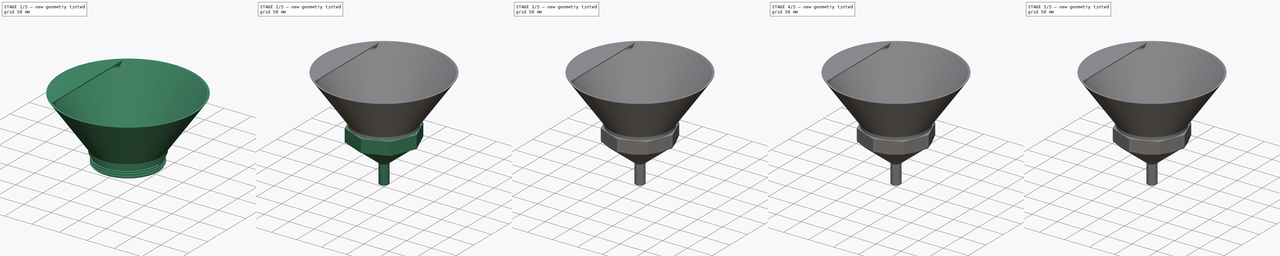
[diagram: build sequence overview — one tinted view per stage of 5, left to right]
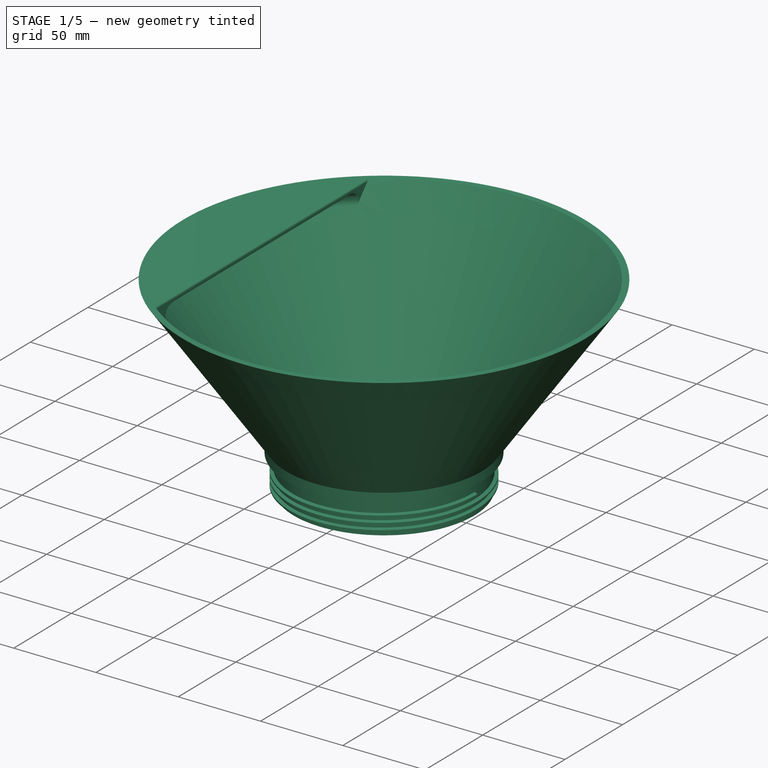
[diagram: stage 1 of 5 — iso view after this stage's code; geometry added in this stage tinted green]
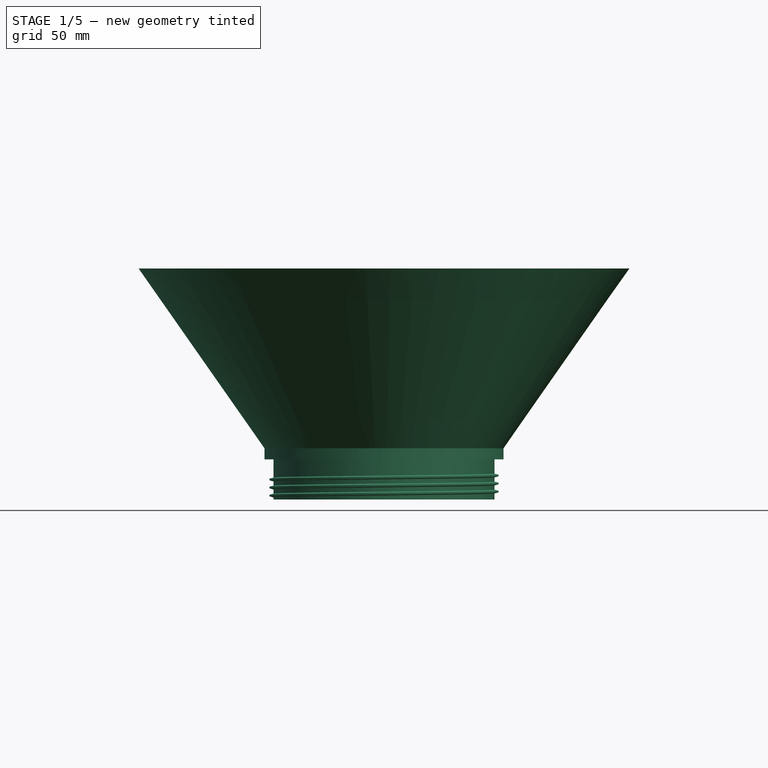
[diagram: stage 1 of 5 — front view after this stage's code; geometry added in this stage tinted green]
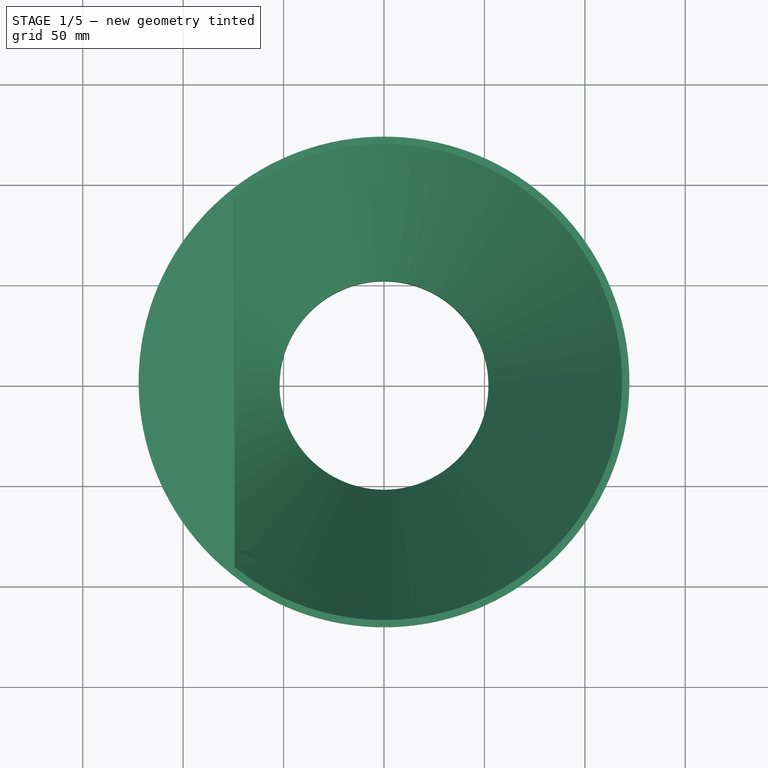
[diagram: stage 1 of 5 — top view after this stage's code; geometry added in this stage tinted green]
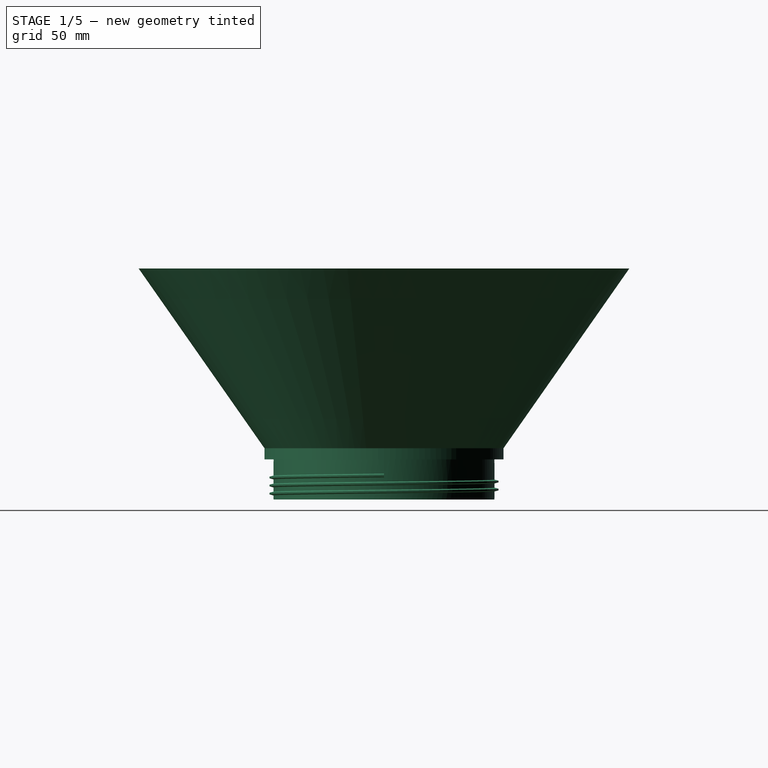
[diagram: stage 1 of 5 — right view after this stage's code; geometry added in this stage tinted green]
FCSTD DOCUMENT  (FreeCAD 2023.131R26244 +5365 (Git))
Label: Chemistry Gravity Filter v2
License: All rights reserved
LicenseURL: http://en.wikipedia.org/wiki/All_rights_reserved
objects: Sketcher::SketchObject×14, PartDesign::Pocket×6, PartDesign::PolarPattern×5, PartDesign::Fillet×5, PartDesign::Revolution×4, PartDesign::Body×3, PartDesign::AdditiveHelix×2, PartDesign::Pad×2, Spreadsheet::Sheet×1
note: 103 computed .brp shape members not serialized (recipe doc carries the construction recipe); baked Part::Feature solids carry a one-line shape summary decoded from their .brp

FEATURE [Spreadsheet::Sheet] Spreadsheet  label="Parameters"
  PythonMode = false
  ShowCells = 0
  TreeRank = 1
  cells = A1=Thickness; B1(thickness)=3; A2=Filter Diameter; B2(filter_diameter)=110; A3=Filter Base Height; B3(filter_base_height)=20; A4=Funnel Height; B4(funnel_height)=95; A5=Funnel Angle; B5(funnel_angle)=35; A6=Collector Body Height; B6(collector_body_height)=40; A7=Stem Min Diameter; B7(stem_min_diameter)=18; A8=Stem Length; B8(stem_length)=40; A10=Handle Width; B10(hangle_width)=45; A12=Thread Pitch; B12(thread_pitch)=4; A13=Thread Depth; B13(thread_depth)=2; A14=Thread Angle; B14(thread_angle)=15; A16=O-right Diameter; B16(oring_diameter)=4; B18=Hole Size; C18=Diameter; D18=Quantity; A19=Outer Ring; B19(ring_1_size)=7; C19(ring_1_diameter)=46; D19(ring_1_count)=30; B20(ring_2_size)=6; C20(ring_2_diameter)=36; D20(ring_2_count)=25; A21=Middle Ring; B21(ring_3_size)=5; C21(ring_3_diameter)=26; D21(ring_3_count)=20; B22(ring_4_size)=4; C22(ring_4_diameter)=16; D22(ring_4_count)=15; A23=Inner Ring; B23(ring_5_size)=3; C23(ring_5_diameter)=8; D23(ring_5_count)=10
FEATURE [Sketcher::SketchObject] Sketch
  ArcFitTolerance = 1e-06
  AttachmentSupport = -> [XZ_Plane]
  ExternalBSplineMaxDegree = 5
  ExternalBSplineTolerance = 0.0001
  FullyConstrained = false
  InternalTolerance = 1e-06
  InvalidShape = false
  MakeInternals = false
  MapMode = 5
  Placement = pos=(0,0,0) rot=(1,0,0;1.5708rad)
  Support = -> [XZ_Plane]
  TreeRank = 12
  ValidateShape = true
  expr: Constraints[0] = <<Parameters>>.funnel_angle
  expr: Constraints[13] = <<Parameters>>.thickness
  expr: Constraints[14] = <<Parameters>>.filter_base_height
  expr: Constraints[1] = <<Parameters>>.funnel_height
  expr: Constraints[20] = <<Parameters>>.thickness * 1.5
  expr: Constraints[2] = <<Parameters>>.filter_diameter / 2 - <<Parameters>>.thickness
  expr: Constraints[6] = <<Parameters>>.thickness
  sketch-geometry (9):
    g0: LineSegment StartX=-52 StartY=0 StartZ=0 EndX=-118.52 EndY=95 EndZ=0
    g1: LineSegment StartX=-59.5 StartY=5.48077 StartZ=0 EndX=-122.182 EndY=95 EndZ=0
    g2: LineSegment [constr] StartX=-88.6276 StartY=47.0793 StartZ=0 EndX=-86.1701 EndY=48.8 EndZ=0
    g3: LineSegment StartX=-122.182 StartY=95 StartZ=0 EndX=-118.52 EndY=95 EndZ=0
    g4: LineSegment StartX=-55 StartY=0 StartZ=0 EndX=-55 EndY=-20 EndZ=0
    g5: LineSegment StartX=-52 StartY=0 StartZ=0 EndX=-52 EndY=-20 EndZ=0
    g6: LineSegment StartX=-55 StartY=-20 StartZ=0 EndX=-52 EndY=-20 EndZ=0
    g7: LineSegment StartX=-59.5 StartY=0 StartZ=0 EndX=-59.5 EndY=5.48077 EndZ=0
    g8: LineSegment StartX=-59.5 StartY=0 StartZ=0 EndX=-55 EndY=0 EndZ=0
  constraints (27):
    c: Angle(g-2,g0) = 0.610865
    c: DistanceY(g-1,g0) = 95
    c: DistanceX(g0,g-1) = 52
    c: Parallel(g0,g1)
    c: PointOnObject(g2,g0)
    c: Perpendicular(g2,g1)
    c: Distance(g2,g2) = 3
    c: Coincident(g3,g1)
    c: Coincident(g3,g0)
    c: Horizontal(g3)
    c: Vertical(g4)
    c: Coincident(g5,g0)
    c: Vertical(g5)
    c: DistanceX(g4,g0) = 3
    c: DistanceY(g4,g4) = 20
    c: Coincident(g6,g4)
    c: Coincident(g6,g5)
    c: Horizontal(g6)
    c: PointOnObject(g4,g-1)
    c: Vertical(g7)
    c: DistanceX(g7,g4) = 4.5
    c: Coincident(g1,g7)
    c: PointOnObject(g2,g1)
    c: PointOnObject(g0,g-1)
    c: Coincident(g8,g7)
    c: Horizontal(g8)
    c: Coincident(g8,g4)
FEATURE [PartDesign::Revolution] Revolution  label="Collection Funnel"
  AddSubType = 0
  Angle = 360
  Axis = (0,-2e-16,1)
  Base = (0,0,0)
  ClaimChildren = false
  Fit = 0
  FitJoin = 0
  InnerFit = 0
  InnerFitJoin = 0
  InvalidShape = false
  Linearize = true
  NewSolid = false
  Profile = -> Sketch
  ReferenceAxis = -> Sketch [V_Axis]
  Suppress = false
  TreeRank = 13
  ValidateShape = true
  _ProfileBasedVersion = 1
FEATURE [Sketcher::SketchObject] Sketch001
  ArcFitTolerance = 1e-06
  AttachmentSupport = -> [XZ_Plane]
  ExternalBSplineMaxDegree = 5
  ExternalBSplineTolerance = 0.0001
  FullyConstrained = true
  InternalTolerance = 1e-06
  InvalidShape = false
  MakeInternals = false
  MapMode = 5
  Placement = pos=(0,0,0) rot=(1,0,0;1.5708rad)
  Support = -> [XZ_Plane]
  TreeRank = 14
  ValidateShape = true
  expr: Constraints[10] = <<Parameters>>.filter_diameter / 2
  expr: Constraints[11] = <<Parameters>>.filter_base_height - 1
  expr: Constraints[7] = <<Parameters>>.thread_pitch / 2.1
  expr: Constraints[8] = <<Parameters>>.thread_depth
  expr: Constraints[9] = 90 - <<Parameters>>.thread_angle
  sketch-geometry (4):
    g0: LineSegment StartX=-55 StartY=-17.0952 StartZ=0 EndX=-55 EndY=-19 EndZ=0
    g1: LineSegment StartX=-55 StartY=-19 StartZ=0 EndX=-57 EndY=-18.4641 EndZ=0
    g2: LineSegment StartX=-55 StartY=-17.0952 StartZ=0 EndX=-57 EndY=-17.6311 EndZ=0
    g3: LineSegment StartX=-57 StartY=-17.6311 StartZ=0 EndX=-57 EndY=-18.4641 EndZ=0
  constraints (12):
    c: Vertical(g0)
    c: Coincident(g1,g0)
    c: Coincident(g3,g2)
    c: Coincident(g3,g1)
    c: Coincident(g2,g0)
    c: Equal(g2,g1)
    c: Parallel(g0,g3)
    c: DistanceY(g0,g0) = 1.90476
    c: DistanceX(g2,g0) = 2
    c: Angle(g2,g0) = 1.309
    c: DistanceX(g0,g-1) = 55
    c: DistanceY(g0,g-1) = 19
FEATURE [PartDesign::AdditiveHelix] Helix  label="Top Threads"
  AddSubType = 0
  Angle = 0
  Axis = (0,-2e-16,1)
  Base = (0,0,0)
  BaseFeature = -> Revolution
  ClaimChildren = false
  Fit = 0
  FitJoin = 0
  Growth = 0
  HasBeenEdited = true
  Height = 10
  InnerFit = 0
  InnerFitJoin = 0
  InvalidShape = false
  LeftHanded = false
  Linearize = true
  Mode = 0
  NewSolid = false
  Outside = false
  Pitch = 4
  Profile = -> Sketch001
  ReferenceAxis = -> Sketch001 [V_Axis]
  Suppress = false
  TreeRank = 15
  Turns = 2.5
  ValidateShape = true
  _ProfileBasedVersion = 1
  expr: Height = <<Parameters>>.filter_base_height / 2
  expr: Pitch = <<Parameters>>.thread_pitch
FEATURE [PartDesign::Body] Body004  label="Bottom"
  AutoGroupSolids = false
  ClaimAllChildren = false
  ExportMode = 0
  Group = -> [Sketch026,Pad001,Sketch027,Helix001,Sketch028,Revolution004,Sketch029,Revolution005,Fillet001,Fillet002,Fillet003]
  InvalidShape = false
  Origin = -> Origin001
  Tip = -> Fillet003
  TreeRank = 135
  ValidateShape = true
  _ExportChildren = -> [Pad001,Helix001,Revolution004,Revolution005,Fillet001,Fillet002,Fillet003]
  _GroupVersion = 1
FEATURE [Sketcher::SketchObject] Sketch030
  ArcFitTolerance = 1e-06
  AttachmentSupport = -> [Helix]
  ExternalBSplineMaxDegree = 5
  ExternalBSplineTolerance = 0.0001
  FullyConstrained = false
  InternalTolerance = 1e-06
  InvalidShape = false
  MakeInternals = false
  MapMode = 5
  Placement = pos=(0,-2.11e-14,95) rot=(0,0,1;0rad)
  Support = -> [Helix]
  TreeRank = 148
  ValidateShape = true
  expr: Constraints[1] = 122.18 * 2 - 2 * <<Parameters>>.thickness
  expr: Constraints[8] = <<Parameters>>.hangle_width
  sketch-geometry (3):
    g0: ArcOfCircle CenterX=0 CenterY=0 CenterZ=0 NormalX=0 NormalY=0 NormalZ=1 AngleXU=0 Radius=119.18 StartAngle=2.24263 EndAngle=4.04056
    g1: LineSegment StartX=-74.18 StartY=93.2802 StartZ=0 EndX=-74.18 EndY=-93.2802 EndZ=0
    g2: LineSegment [constr] StartX=-119.18 StartY=1e-16 StartZ=0 EndX=-74.18 EndY=1e-16 EndZ=0
  constraints (9):
    c: Coincident(g0,g-1)
    c: Diameter(g0) = 238.36
    c: Vertical(g1)
    c: Coincident(g0,g1)
    c: Coincident(g0,g1)
    c: PointOnObject(g2,g0)
    c: PointOnObject(g2,g1)
    c: Horizontal(g2)
    c: DistanceX(g2,g2) = 45
FEATURE [PartDesign::Pad] Pad  label="Handle"
  AddSubType = 0
  AlongSketchNormal = false
  AutoTaperInnerAngle = true
  BaseFeature = -> Helix
  CheckUpToFaceLimits = true
  ClaimChildren = false
  Direction = (0,-2e-16,1)
  Fit = 0
  FitJoin = 0
  InnerFit = 0
  InnerFitJoin = 0
  InvalidShape = false
  Length = 3
  Length2 = 100
  Linearize = true
  NewSolid = false
  Profile = -> Sketch030
  Reversed = true
  Suppress = false
  TaperInnerAngle = 0
  TaperInnerAngleRev = 0
  TreeRank = 149
  Type = 0
  ValidateShape = true
  _ProfileBasedVersion = 1
  expr: Length = <<Parameters>>.thickness
FEATURE [PartDesign::Fillet] Fillet
  AddSubType = 0
  Base = -> Pad [Edge6]
  BaseFeature = -> Pad
  InvalidShape = false
  NewSolid = false
  Radius = 5
  SupportTransform = false
  Suppress = false
  TreeRank = 150
  ValidateShape = true
FEATURE [PartDesign::Fillet] Fillet004
  AddSubType = 0
  Base = -> Fillet [Edge17,Edge15]
  BaseFeature = -> Fillet
  InvalidShape = false
  NewSolid = false
  Radius = 1
  SupportTransform = false
  Suppress = false
  TreeRank = 151
  ValidateShape = true
FEATURE [PartDesign::Body] Body  label="Top"
  AutoGroupSolids = false
  ClaimAllChildren = false
  ExportMode = 0
  Group = -> [Sketch,Revolution,Sketch001,Helix,Sketch030,Pad,Fillet,Fillet004]
  InvalidShape = false
  Origin = -> Origin
  Tip = -> Fillet004
  TreeRank = 11
  ValidateShape = true
  _ExportChildren = -> [Revolution,Helix,Pad,Fillet,Fillet004]
  _GroupVersion = 1
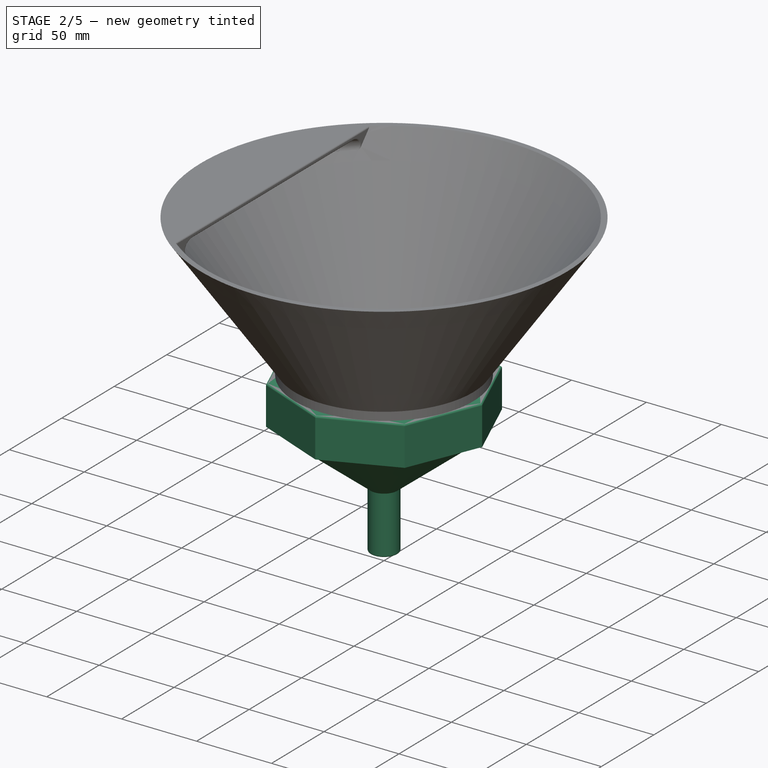
[diagram: stage 2 of 5 — iso view after this stage's code; geometry added in this stage tinted green]
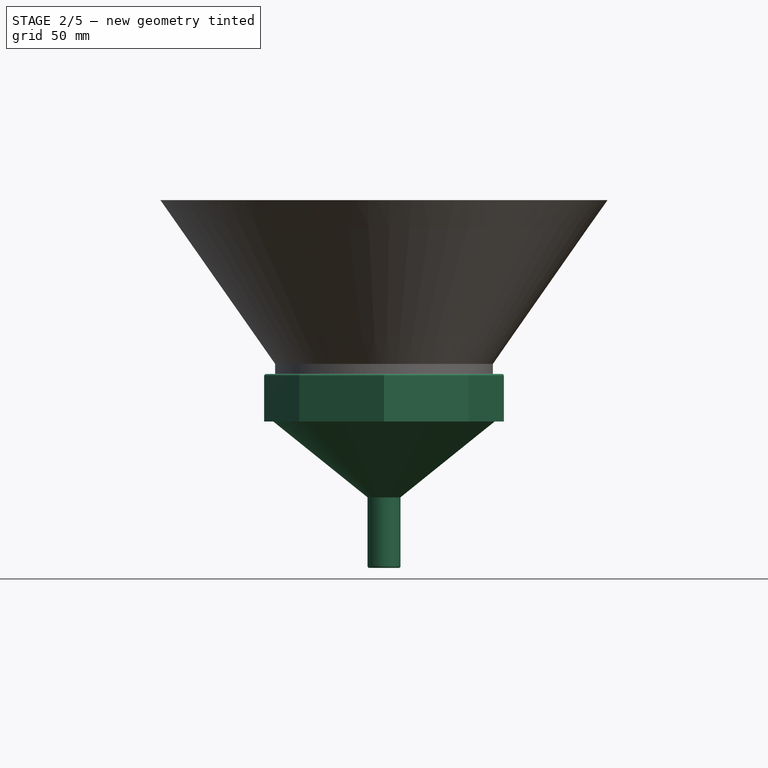
[diagram: stage 2 of 5 — front view after this stage's code; geometry added in this stage tinted green]
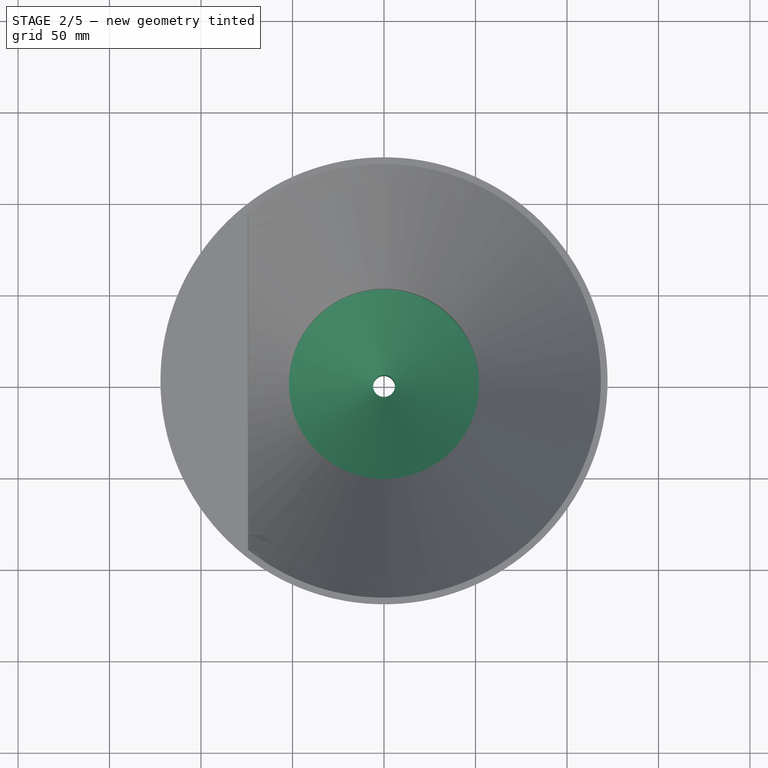
[diagram: stage 2 of 5 — top view after this stage's code; geometry added in this stage tinted green]
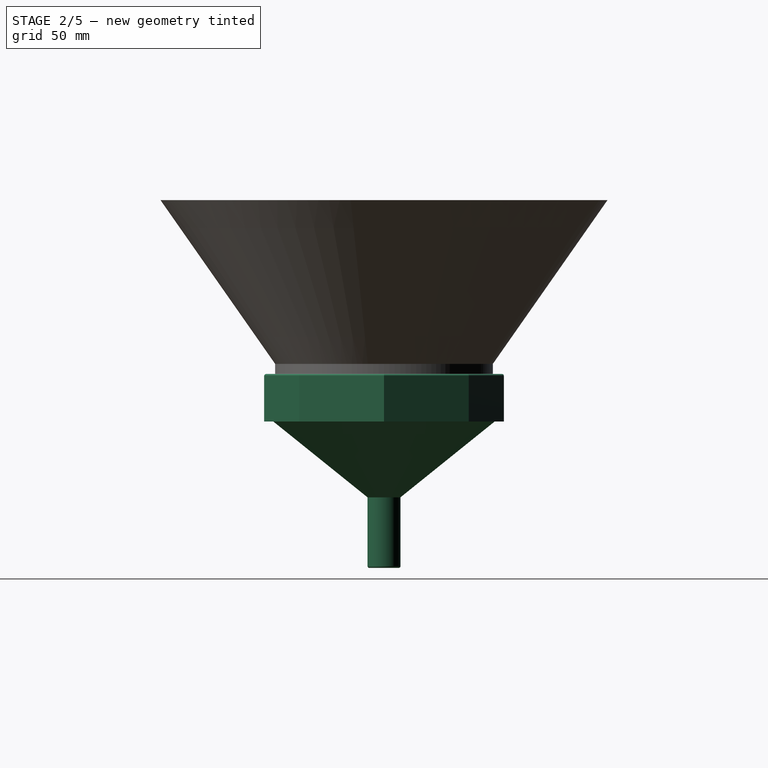
[diagram: stage 2 of 5 — right view after this stage's code; geometry added in this stage tinted green]
FEATURE [PartDesign::Body] Body003  label="Filter Plate"
  AutoGroupSolids = false
  ClaimAllChildren = false
  ExportMode = 0
  Group = -> [Sketch019,Revolution003,Sketch020,Sketch021,Sketch022,Sketch023,Sketch024,Sketch025,Pocket008,PolarPattern005,Pocket009,PolarPattern006,Pocket010,PolarPattern007,Pocket011,PolarPattern008,Pocket012,PolarPattern009,Pocket013]
  InvalidShape = false
  Tip = -> Pocket013
  TreeRank = 125
  ValidateShape = true
  _ExportChildren = -> [Revolution003,Pocket008,PolarPattern005,Pocket009,PolarPattern006,Pocket010,PolarPattern007,Pocket011,PolarPattern008,Pocket012,PolarPattern009,Pocket013]
  _GroupVersion = 1
FEATURE [Sketcher::SketchObject] Sketch026
  ArcFitTolerance = 1e-06
  AttachmentSupport = -> [XY_Plane001]
  ExternalBSplineMaxDegree = 5
  ExternalBSplineTolerance = 0.0001
  FullyConstrained = true
  InternalTolerance = 1e-06
  InvalidShape = false
  MakeInternals = false
  MapMode = 5
  Support = -> [XY_Plane001]
  TreeRank = 136
  ValidateShape = true
  expr: Constraints[0] = <<Parameters>>.filter_diameter + 2 * <<Parameters>>.thread_depth + 1
  expr: Constraints[29] = <<Parameters>>.thickness
  sketch-geometry (11):
    g0: Circle CenterX=0 CenterY=0 CenterZ=0 NormalX=0 NormalY=0 NormalZ=1 AngleXU=0 Radius=57.5
    g1: LineSegment StartX=0 StartY=65.4847 StartZ=0 EndX=-46.3047 EndY=46.3047 EndZ=0
    g2: LineSegment StartX=-46.3047 StartY=46.3047 StartZ=0 EndX=-65.4847 EndY=0 EndZ=0
    g3: LineSegment StartX=-65.4847 StartY=-9e-16 StartZ=0 EndX=-46.3047 EndY=-46.3047 EndZ=0
    g4: LineSegment StartX=-46.3047 StartY=-46.3047 StartZ=0 EndX=0 EndY=-65.4847 EndZ=0
    g5: LineSegment StartX=-1.8e-15 StartY=-65.4847 StartZ=0 EndX=46.3047 EndY=-46.3047 EndZ=0
    g6: LineSegment StartX=46.3047 StartY=-46.3047 StartZ=0 EndX=65.4847 EndY=0 EndZ=0
    g7: LineSegment StartX=65.4847 StartY=1.1e-15 StartZ=0 EndX=46.3047 EndY=46.3047 EndZ=0
    g8: LineSegment StartX=46.3047 StartY=46.3047 StartZ=0 EndX=0 EndY=65.4847 EndZ=0
    g9: Circle [constr] CenterX=0 CenterY=0 CenterZ=0 NormalX=0 NormalY=0 NormalZ=1 AngleXU=0 Radius=65.4847
    g10: LineSegment [constr] StartX=23.1523 StartY=55.8947 StartZ=0 EndX=22.0043 EndY=53.1231 EndZ=0
  constraints (25):
    c: Diameter(g0) = 115
    c: Coincident(g1,g2)
    c: Coincident(g2,g3)
    c: Coincident(g3,g4)
    c: Coincident(g4,g5)
    c: Coincident(g5,g6)
    c: Coincident(g6,g7)
    c: Coincident(g7,g8)
    c: Coincident(g8,g1)
    c: Equal(g1, g2-g8) x7
    c: PointOnObject(g1,g9)
    c: PointOnObject(g2,g9)
    c: PointOnObject(g3,g9)
    c: PointOnObject(g4,g9)
    c: PointOnObject(g5,g9)
    c: PointOnObject(g6,g9)
    c: PointOnObject(g7,g9)
    c: PointOnObject(g8,g9)
    c: Coincident(g9,g0)
    c: PointOnObject(g8,g-2)
    c: PointOnObject(g10,g0)
    c: Perpendicular(g10,g8)
    c: Symmetric(g1,g7,g10)
    c: Distance(g10,g10) = 3
    c: Coincident(g0,g-1)
FEATURE [PartDesign::Pad] Pad001  label="Bottom Threaded Ring"
  AddSubType = 0
  AlongSketchNormal = false
  AutoTaperInnerAngle = true
  CheckUpToFaceLimits = true
  ClaimChildren = false
  Direction = (0,0,1)
  Fit = 0
  FitJoin = 0
  InnerFit = 0
  InnerFitJoin = 0
  InvalidShape = false
  Length = 26
  Length2 = 100
  Linearize = true
  NewSolid = false
  Profile = -> Sketch026
  Reversed = true
  Suppress = false
  TaperInnerAngle = 0
  TaperInnerAngleRev = 0
  TreeRank = 137
  Type = 0
  ValidateShape = true
  _ProfileBasedVersion = 1
  expr: Length = <<Parameters>>.filter_base_height + 2 * <<Parameters>>.thickness
FEATURE [Sketcher::SketchObject] Sketch027
  ArcFitTolerance = 1e-06
  AttachmentSupport = -> [XZ_Plane001]
  ExternalBSplineMaxDegree = 5
  ExternalBSplineTolerance = 0.0001
  FullyConstrained = true
  InternalTolerance = 1e-06
  InvalidShape = false
  MakeInternals = false
  MapMode = 5
  Placement = pos=(0,0,0) rot=(1,0,0;1.5708rad)
  Support = -> [XZ_Plane001]
  TreeRank = 138
  ValidateShape = true
  expr: Constraints[10] = <<Parameters>>.filter_diameter / 2 + <<Parameters>>.thread_depth + 1
  expr: Constraints[7] = <<Parameters>>.thread_pitch / 2.1
  expr: Constraints[8] = <<Parameters>>.thread_depth
  expr: Constraints[9] = 90 - <<Parameters>>.thread_angle
  sketch-geometry (4):
    g0: LineSegment StartX=-58 StartY=0 StartZ=0 EndX=-58 EndY=-1.90476 EndZ=0
    g1: LineSegment StartX=-58 StartY=0 StartZ=0 EndX=-56 EndY=-0.535898 EndZ=0
    g2: LineSegment StartX=-58 StartY=-1.90476 StartZ=0 EndX=-56 EndY=-1.36886 EndZ=0
    g3: LineSegment StartX=-56 StartY=-0.535898 StartZ=0 EndX=-56 EndY=-1.36886 EndZ=0
  constraints (12):
    c: Vertical(g0)
    c: Coincident(g1,g0)
    c: Coincident(g2,g0)
    c: Coincident(g3,g1)
    c: Coincident(g3,g2)
    c: Vertical(g3)
    c: Equal(g1,g2)
    c: DistanceY(g0,g0) = 1.90476
    c: DistanceX(g0,g1) = 2
    c: Angle(g0,g1) = 1.309
    c: DistanceX(g0,g-1) = 58
    c: DistanceY(g0,g-1) = 0
FEATURE [PartDesign::AdditiveHelix] Helix001  label="Bottom Threads"
  AddSubType = 0
  Angle = 0
  Axis = (0,-2e-16,1)
  Base = (0,0,0)
  BaseFeature = -> Pad001
  ClaimChildren = false
  Fit = 0
  FitJoin = 0
  Growth = 0
  HasBeenEdited = true
  Height = 16
  InnerFit = 0
  InnerFitJoin = 0
  InvalidShape = false
  LeftHanded = false
  Linearize = true
  Mode = 0
  NewSolid = false
  Outside = false
  Pitch = 4
  Profile = -> Sketch027
  ReferenceAxis = -> Sketch027 [V_Axis]
  Reversed = true
  Suppress = false
  TreeRank = 139
  Turns = 4
  ValidateShape = true
  _ProfileBasedVersion = 1
  expr: Height = <<Parameters>>.filter_base_height - <<Parameters>>.thread_pitch
  expr: Pitch = <<Parameters>>.thread_pitch
FEATURE [Sketcher::SketchObject] Sketch028
  ArcFitTolerance = 1e-06
  AttachmentSupport = -> [XZ_Plane001]
  ExternalBSplineMaxDegree = 5
  ExternalBSplineTolerance = 0.0001
  FullyConstrained = true
  InternalTolerance = 1e-06
  InvalidShape = false
  MakeInternals = false
  MapMode = 5
  Placement = pos=(0,0,0) rot=(1,0,0;1.5708rad)
  Support = -> [XZ_Plane001]
  TreeRank = 141
  ValidateShape = true
  expr: Constraints[10] = <<Parameters>>.filter_base_height + 2 * <<Parameters>>.thickness
  expr: Constraints[11] = <<Parameters>>.thickness
  expr: Constraints[8] = <<Parameters>>.thickness + <<Parameters>>.thread_depth / 2
  expr: Constraints[9] = (<<Parameters>>.filter_diameter + 2 * <<Parameters>>.thread_depth + 1) / 2
  sketch-geometry (4):
    g0: LineSegment StartX=-57.5 StartY=-23 StartZ=0 EndX=-53.5 EndY=-23 EndZ=0
    g1: LineSegment StartX=-53.5 StartY=-23 StartZ=0 EndX=-53.5 EndY=-26 EndZ=0
    g2: LineSegment StartX=-53.5 StartY=-26 StartZ=0 EndX=-57.5 EndY=-26 EndZ=0
    g3: LineSegment StartX=-57.5 StartY=-26 StartZ=0 EndX=-57.5 EndY=-23 EndZ=0
  constraints (12):
    c: Coincident(g0,g1)
    c: Coincident(g1,g2)
    c: Coincident(g2,g3)
    c: Coincident(g3,g0)
    c: Horizontal(g0)
    c: Horizontal(g2)
    c: Vertical(g1)
    c: Vertical(g3)
    c: DistanceX(g0,g0) = 4
    c: DistanceX(g0,g-1) = 57.5
    c: DistanceY(g2,g-1) = 26
    c: DistanceY(g2,g0) = 3
FEATURE [PartDesign::Revolution] Revolution004  label="Retaining Ring"
  AddSubType = 0
  Angle = 360
  Axis = (0,-2e-16,1)
  Base = (0,0,0)
  BaseFeature = -> Helix001
  ClaimChildren = false
  Fit = 0
  FitJoin = 0
  InnerFit = 0
  InnerFitJoin = 0
  InvalidShape = false
  Linearize = true
  NewSolid = false
  Profile = -> Sketch028
  ReferenceAxis = -> Sketch028 [V_Axis]
  Suppress = false
  TreeRank = 142
  ValidateShape = true
  _ProfileBasedVersion = 1
FEATURE [Sketcher::SketchObject] Sketch029
  ArcFitTolerance = 1e-06
  AttachmentSupport = -> [XZ_Plane001]
  ExternalBSplineMaxDegree = 5
  ExternalBSplineTolerance = 0.0001
  FullyConstrained = true
  InternalTolerance = 1e-06
  InvalidShape = false
  MakeInternals = false
  MapMode = 5
  Placement = pos=(0,0,0) rot=(1,0,0;1.5708rad)
  Support = -> [XZ_Plane001]
  TreeRank = 143
  ValidateShape = true
  expr: Constraints[11] = <<Parameters>>.thickness
  expr: Constraints[15] = <<Parameters>>.thickness
  expr: Constraints[16] = <<Parameters>>.stem_length
  expr: Constraints[17] = <<Parameters>>.collector_body_height
  expr: Constraints[18] = (<<Parameters>>.filter_diameter + 2 * <<Parameters>>.thread_depth + 1) / 2 + <<Parameters>>.thickness
  expr: Constraints[19] = <<Parameters>>.stem_min_diameter / 2
  expr: Constraints[9] = <<Parameters>>.filter_base_height + 2 * <<Parameters>>.thickness
  sketch-geometry (7):
    g0: LineSegment StartX=-55.7144 StartY=-26 StartZ=0 EndX=-6 EndY=-66 EndZ=0
    g1: LineSegment StartX=-6 StartY=-66 StartZ=0 EndX=-6 EndY=-106 EndZ=0
    g2: LineSegment StartX=-6 StartY=-106 StartZ=0 EndX=-9 EndY=-106 EndZ=0
    g3: LineSegment StartX=-9 StartY=-106 StartZ=0 EndX=-9 EndY=-67.4367 EndZ=0
    g4: LineSegment StartX=-9 StartY=-67.4367 StartZ=0 EndX=-60.5 EndY=-26 EndZ=0
    g5: LineSegment StartX=-60.5 StartY=-26 StartZ=0 EndX=-55.7144 EndY=-26 EndZ=0
    g6: LineSegment [constr] StartX=-34.75 StartY=-46.7184 StartZ=0 EndX=-32.8694 EndY=-44.381 EndZ=0
  constraints (21):
    c: Coincident(g1,g0)
    c: Vertical(g1)
    c: Coincident(g2,g1)
    c: Coincident(g3,g2)
    c: Vertical(g3)
    c: Coincident(g4,g3)
    c: Coincident(g5,g4)
    c: Coincident(g5,g0)
    c: Horizontal(g5)
    c: DistanceY(g4,g-1) = 26
    c: Horizontal(g2)
    c: DistanceX(g2,g1) = 3
    c: PointOnObject(g6,g0)
    c: Perpendicular(g6,g4)
    c: Parallel(g4,g0)
    c: Distance(g6,g6) = 3
    c: DistanceY(g1,g0) = 40
    c: DistanceY(g0,g0) = 40
    c: DistanceX(g4,g-1) = 60.5
    c: DistanceX(g2,g-1) = 9
    c: Symmetric(g4,g3,g6)
FEATURE [PartDesign::Revolution] Revolution005  label="Funnel"
  AddSubType = 0
  Angle = 360
  Axis = (0,-2e-16,1)
  Base = (0,0,0)
  BaseFeature = -> Revolution004
  ClaimChildren = false
  Fit = 0
  FitJoin = 0
  InnerFit = 0
  InnerFitJoin = 0
  InvalidShape = false
  Linearize = true
  NewSolid = false
  Profile = -> Sketch029
  ReferenceAxis = -> Sketch029 [V_Axis]
  Suppress = false
  TreeRank = 144
  ValidateShape = true
  _ProfileBasedVersion = 1
FEATURE [PartDesign::Fillet] Fillet001
  AddSubType = 0
  Base = -> Revolution005 [Face31,Face4]
  BaseFeature = -> Revolution005
  InvalidShape = false
  NewSolid = false
  Radius = 1
  SupportTransform = false
  Suppress = false
  TreeRank = 145
  ValidateShape = true
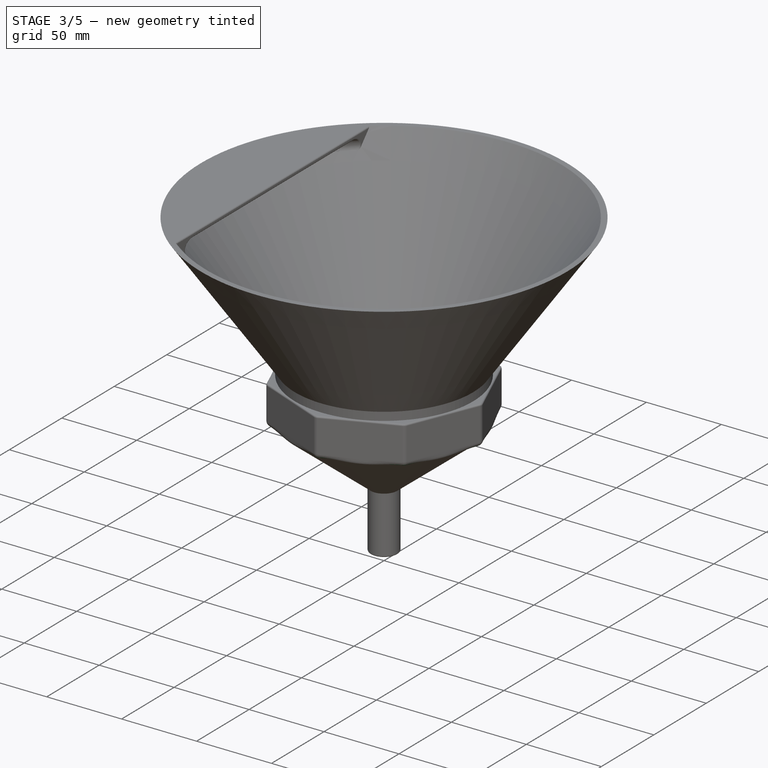
[diagram: stage 3 of 5 — iso view after this stage's code; geometry added in this stage tinted green]
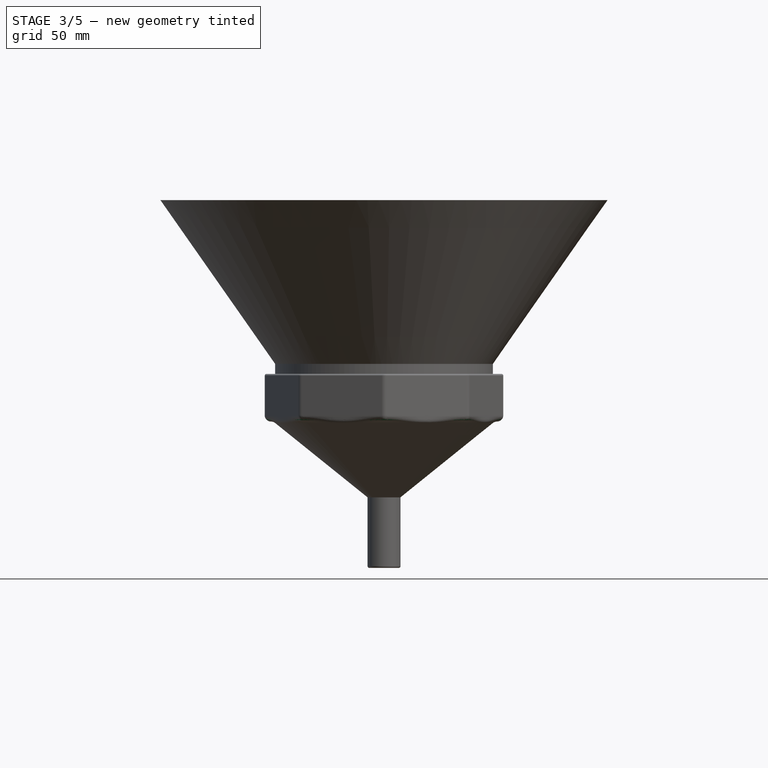
[diagram: stage 3 of 5 — front view after this stage's code; geometry added in this stage tinted green]
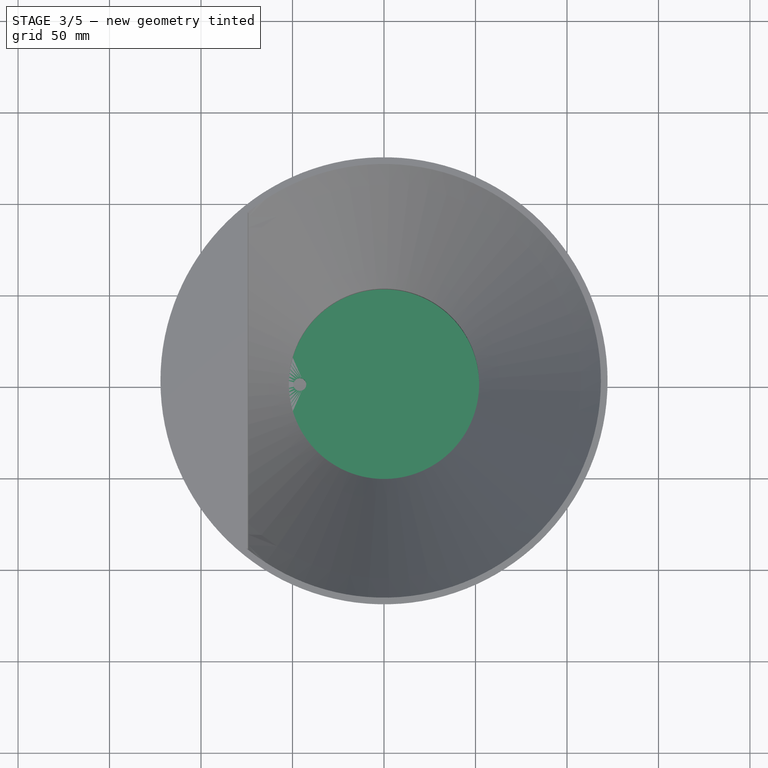
[diagram: stage 3 of 5 — top view after this stage's code; geometry added in this stage tinted green]
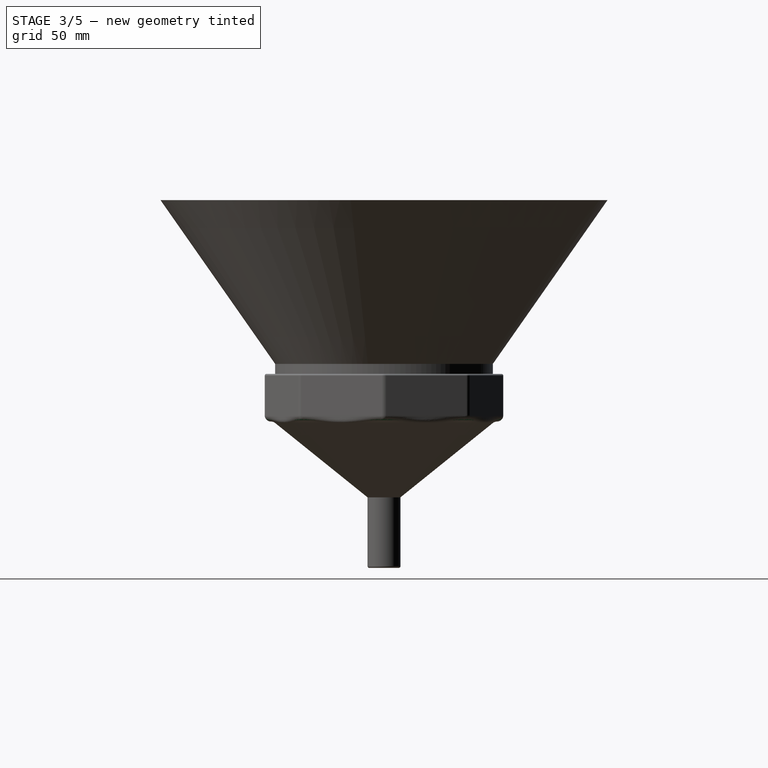
[diagram: stage 3 of 5 — right view after this stage's code; geometry added in this stage tinted green]
FEATURE [Sketcher::SketchObject] Sketch019
  ArcFitTolerance = 1e-06
  ExternalBSplineMaxDegree = 5
  ExternalBSplineTolerance = 0.0001
  FullyConstrained = true
  InternalTolerance = 1e-06
  InvalidShape = false
  MakeInternals = false
  MapMode = 5
  Placement = pos=(0,0,0) rot=(1,0,0;1.5708rad)
  TreeRank = 103
  ValidateShape = true
  expr: Constraints[14] = <<Parameters>>.filter_diameter / 2
  expr: Constraints[16] = <<Parameters>>.thickness + 1
  expr: Constraints[17] = <<Parameters>>.filter_base_height
  expr: Constraints[9] = <<Parameters>>.thickness
  sketch-geometry (6):
    g0: LineSegment StartX=-55 StartY=-20 StartZ=0 EndX=0 EndY=-20 EndZ=0
    g1: LineSegment StartX=-55 StartY=-20 StartZ=0 EndX=-55 EndY=-23 EndZ=0
    g2: LineSegment StartX=0 StartY=-26 StartZ=0 EndX=-51 EndY=-26 EndZ=0
    g3: LineSegment StartX=-51 StartY=-26 StartZ=0 EndX=-51 EndY=-23 EndZ=0
    g4: LineSegment StartX=-51 StartY=-23 StartZ=0 EndX=-55 EndY=-23 EndZ=0
    g5: LineSegment StartX=0 StartY=-20 StartZ=0 EndX=0 EndY=-26 EndZ=0
  constraints (18):
    c: Horizontal(g0)
    c: Coincident(g1,g0)
    c: Vertical(g1)
    c: Horizontal(g2)
    c: Coincident(g3,g2)
    c: Vertical(g3)
    c: Coincident(g4,g3)
    c: Coincident(g4,g1)
    c: Horizontal(g4)
    c: DistanceY(g1,g0) = 3
    c: Vertical(g5)
    c: Coincident(g0,g5)
    c: Coincident(g2,g5)
    c: DistanceX(g2,g-1) = 0
    c: DistanceX(g0,g-1) = 55
    c: Equal(g1,g3)
    c: DistanceX(g1,g3) = 4
    c: DistanceY(g0,g-1) = 20
FEATURE [PartDesign::Revolution] Revolution003
  AddSubType = 0
  Angle = 360
  Axis = (0,0,1)
  Base = (0,0,0)
  ClaimChildren = false
  Fit = 0
  FitJoin = 0
  InnerFit = 0
  InnerFitJoin = 0
  InvalidShape = false
  Linearize = true
  NewSolid = false
  Profile = -> Sketch019
  ReferenceAxis = -> Sketch019 [V_Axis]
  Suppress = false
  TreeRank = 104
  ValidateShape = true
  _ProfileBasedVersion = 1
FEATURE [Sketcher::SketchObject] Sketch020
  ArcFitTolerance = 1e-06
  ExternalBSplineMaxDegree = 5
  ExternalBSplineTolerance = 0.0001
  FullyConstrained = true
  InternalTolerance = 1e-06
  InvalidShape = false
  MakeInternals = false
  MapMode = 5
  TreeRank = 105
  ValidateShape = true
  expr: Constraints[1] = Spreadsheet.ring_1_size
  expr: Constraints[2] = <<Parameters>>.ring_1_diameter
  sketch-geometry (1):
    g0: Circle CenterX=-46 CenterY=0 CenterZ=0 NormalX=0 NormalY=0 NormalZ=1 AngleXU=0 Radius=3.5
  constraints (3):
    c: PointOnObject(g0,g-1)
    c: Diameter(g0) = 7
    c: DistanceX(g0,g-1) = 46
FEATURE [PartDesign::Pocket] Pocket008
  AddSubType = 1
  AutoTaperInnerAngle = true
  BaseFeature = -> Revolution003
  CheckUpToFaceLimits = true
  ClaimChildren = false
  Fit = 0
  FitJoin = 0
  InnerFit = 0
  InnerFitJoin = 0
  InvalidShape = false
  Length = 100
  Length2 = 100
  Linearize = true
  NewSolid = false
  Profile = -> Sketch020
  Suppress = false
  TaperInnerAngle = 0
  TaperInnerAngleRev = 0
  TreeRank = 111
  Type = 4
  ValidateShape = true
  _ProfileBasedVersion = 1
  _Version = 1
FEATURE [PartDesign::Fillet] Fillet002
  AddSubType = 0
  Base = -> Fillet001 [Face54,Face56]
  BaseFeature = -> Fillet001
  InvalidShape = false
  NewSolid = false
  Radius = 1
  SupportTransform = false
  Suppress = false
  TreeRank = 146
  ValidateShape = true
FEATURE [PartDesign::Fillet] Fillet003
  AddSubType = 0
  Base = -> Fillet002 [Face50,Face52,Face54,Face56,Face55,Face53,Face51,Face49,Edge104,Edge110,Edge116,Edge112,Edge106,Edge100,Edge96,Edge98]
  BaseFeature = -> Fillet002
  InvalidShape = false
  NewSolid = false
  Radius = 3.43
  SupportTransform = false
  Suppress = false
  TreeRank = 147
  ValidateShape = true
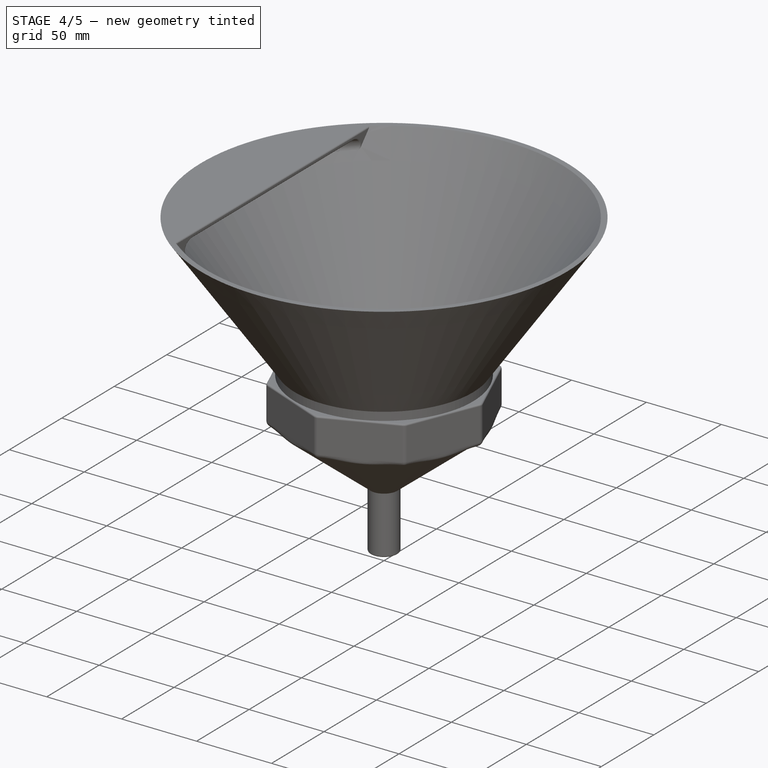
[diagram: stage 4 of 5 — iso view after this stage's code; geometry added in this stage tinted green]
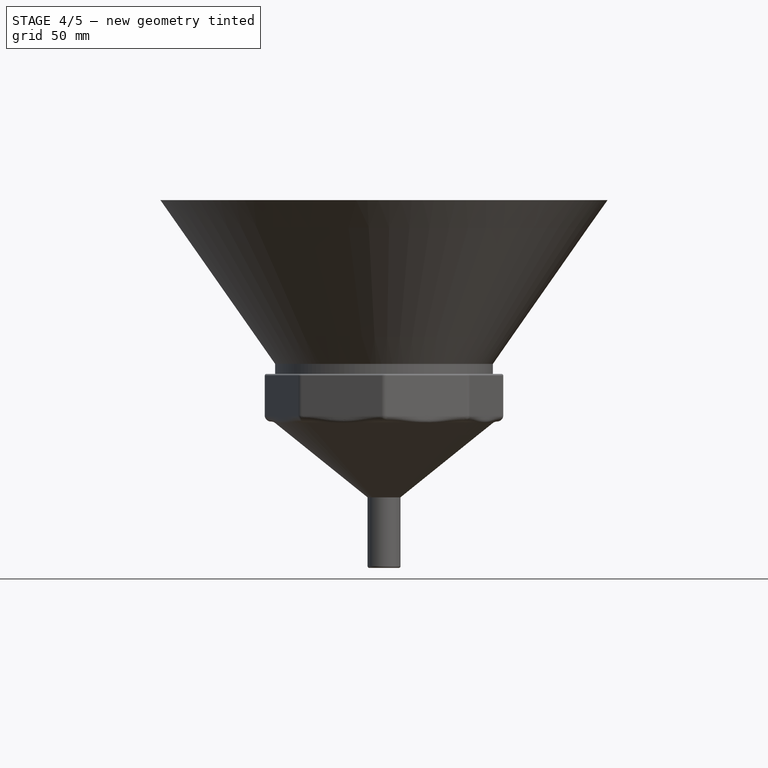
[diagram: stage 4 of 5 — front view after this stage's code; geometry added in this stage tinted green]
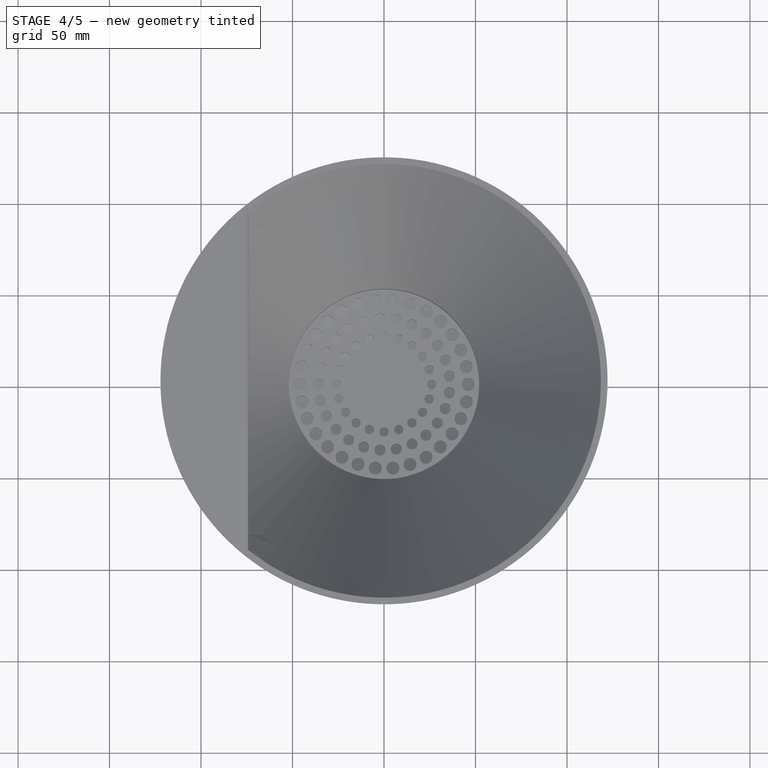
[diagram: stage 4 of 5 — top view after this stage's code; geometry added in this stage tinted green]
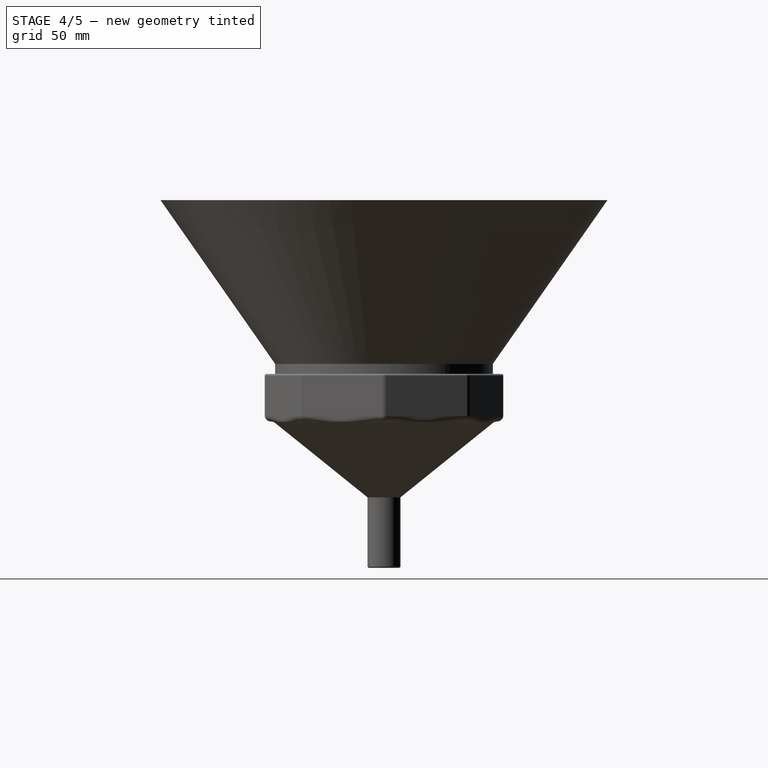
[diagram: stage 4 of 5 — right view after this stage's code; geometry added in this stage tinted green]
FEATURE [PartDesign::PolarPattern] PolarPattern005
  AddSubType = 0
  Angle = 360
  Axis = -> Sketch020 [N_Axis]
  BaseFeature = -> Pocket008
  CopyShape = false
  InvalidShape = false
  NewSolid = false
  Occurrences = 30
  OriginalSubs = -> [Pocket008]
  Originals = -> [Pocket008]
  ParallelTransform = true
  SubTransform = true
  Suppress = false
  TreeRank = 112
  ValidateShape = true
  _Version = 3
  expr: Occurrences = <<Parameters>>.ring_1_count
FEATURE [Sketcher::SketchObject] Sketch021
  ArcFitTolerance = 1e-06
  ExternalBSplineMaxDegree = 5
  ExternalBSplineTolerance = 0.0001
  FullyConstrained = true
  InternalTolerance = 1e-06
  InvalidShape = false
  MakeInternals = false
  MapMode = 5
  TreeRank = 106
  ValidateShape = true
  expr: Constraints[1] = <<Parameters>>.ring_2_size
  expr: Constraints[2] = <<Parameters>>.ring_2_diameter
  sketch-geometry (1):
    g0: Circle CenterX=-36 CenterY=0 CenterZ=0 NormalX=0 NormalY=0 NormalZ=1 AngleXU=0 Radius=3
  constraints (3):
    c: PointOnObject(g0,g-1)
    c: Diameter(g0) = 6
    c: DistanceX(g0,g-1) = 36
FEATURE [PartDesign::Pocket] Pocket009
  AddSubType = 1
  AutoTaperInnerAngle = true
  BaseFeature = -> PolarPattern005
  CheckUpToFaceLimits = true
  ClaimChildren = false
  Fit = 0
  FitJoin = 0
  InnerFit = 0
  InnerFitJoin = 0
  InvalidShape = false
  Length = 100
  Length2 = 100
  Linearize = true
  NewSolid = false
  Profile = -> Sketch021
  Suppress = false
  TaperInnerAngle = 0
  TaperInnerAngleRev = 0
  TreeRank = 113
  Type = 4
  ValidateShape = true
  _ProfileBasedVersion = 1
  _Version = 1
FEATURE [PartDesign::PolarPattern] PolarPattern006
  AddSubType = 0
  Angle = 360
  Axis = -> Sketch021 [N_Axis]
  BaseFeature = -> Pocket009
  CopyShape = false
  InvalidShape = false
  NewSolid = false
  Occurrences = 25
  OriginalSubs = -> [Pocket009]
  Originals = -> [Pocket009]
  ParallelTransform = true
  SubTransform = true
  Suppress = false
  TreeRank = 114
  ValidateShape = true
  _Version = 3
  expr: Occurrences = <<Parameters>>.ring_2_count
FEATURE [Sketcher::SketchObject] Sketch022
  ArcFitTolerance = 1e-06
  ExternalBSplineMaxDegree = 5
  ExternalBSplineTolerance = 0.0001
  FullyConstrained = true
  InternalTolerance = 1e-06
  InvalidShape = false
  MakeInternals = false
  MapMode = 5
  TreeRank = 107
  ValidateShape = true
  expr: Constraints[1] = <<Parameters>>.ring_3_size
  expr: Constraints[2] = <<Parameters>>.ring_3_diameter
  sketch-geometry (1):
    g0: Circle CenterX=-26 CenterY=0 CenterZ=0 NormalX=0 NormalY=0 NormalZ=1 AngleXU=0 Radius=2.5
  constraints (3):
    c: PointOnObject(g0,g-1)
    c: Diameter(g0) = 5
    c: DistanceX(g0,g-1) = 26
FEATURE [PartDesign::Pocket] Pocket010
  AddSubType = 1
  AutoTaperInnerAngle = true
  BaseFeature = -> PolarPattern006
  CheckUpToFaceLimits = true
  ClaimChildren = false
  Fit = 0
  FitJoin = 0
  InnerFit = 0
  InnerFitJoin = 0
  InvalidShape = false
  Length = 100
  Length2 = 100
  Linearize = true
  NewSolid = false
  Profile = -> Sketch022
  Suppress = false
  TaperInnerAngle = 0
  TaperInnerAngleRev = 0
  TreeRank = 115
  Type = 4
  ValidateShape = true
  _ProfileBasedVersion = 1
  _Version = 1
FEATURE [PartDesign::PolarPattern] PolarPattern007
  AddSubType = 0
  Angle = 360
  Axis = -> Sketch022 [N_Axis]
  BaseFeature = -> Pocket010
  CopyShape = false
  InvalidShape = false
  NewSolid = false
  Occurrences = 20
  OriginalSubs = -> [Pocket010]
  Originals = -> [Pocket010]
  ParallelTransform = true
  SubTransform = true
  Suppress = false
  TreeRank = 116
  ValidateShape = true
  _Version = 3
  expr: Occurrences = <<Parameters>>.ring_3_count
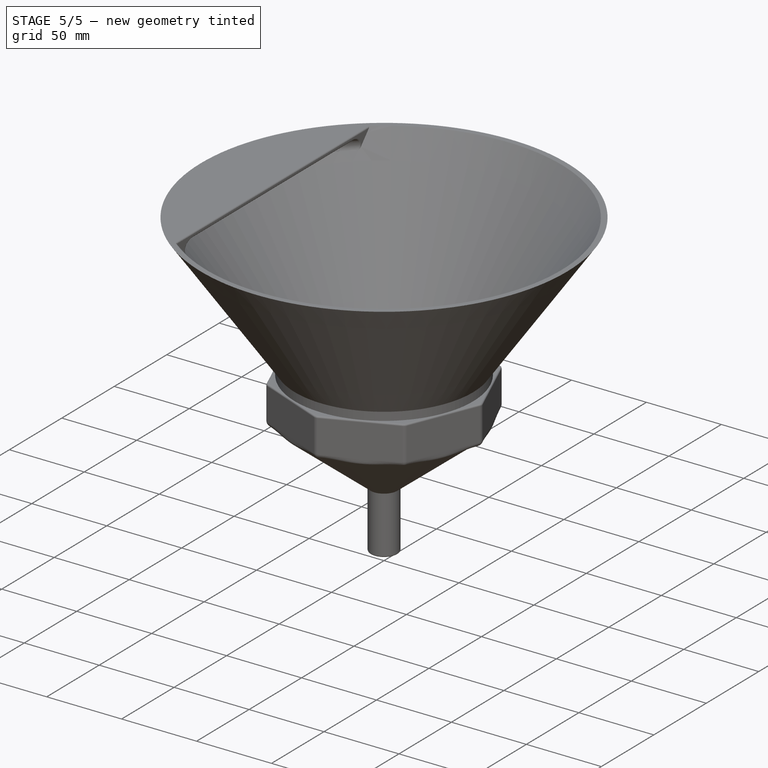
[diagram: stage 5 of 5 — iso view after this stage's code; geometry added in this stage tinted green]
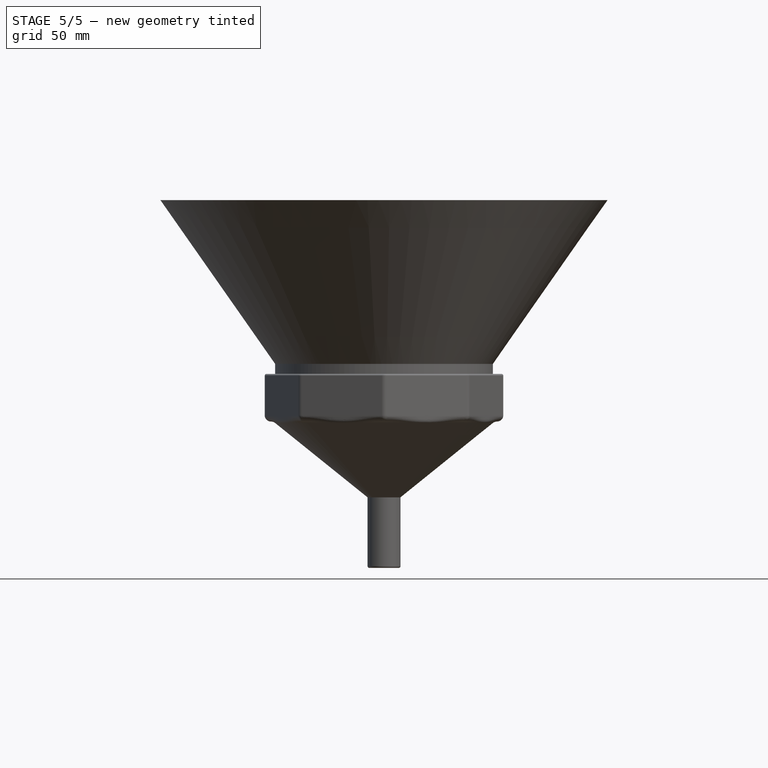
[diagram: stage 5 of 5 — front view after this stage's code; geometry added in this stage tinted green]
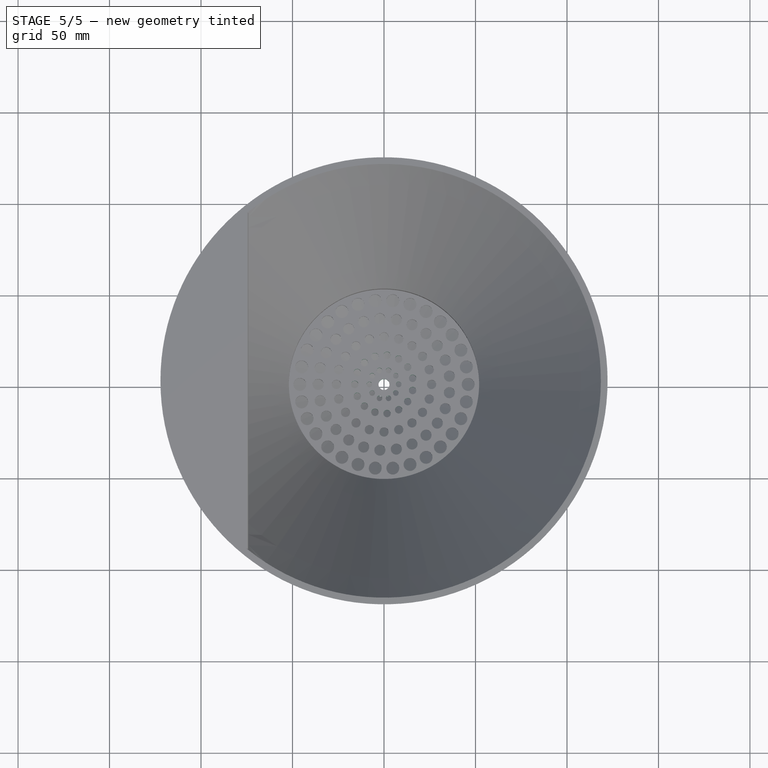
[diagram: stage 5 of 5 — top view after this stage's code; geometry added in this stage tinted green]
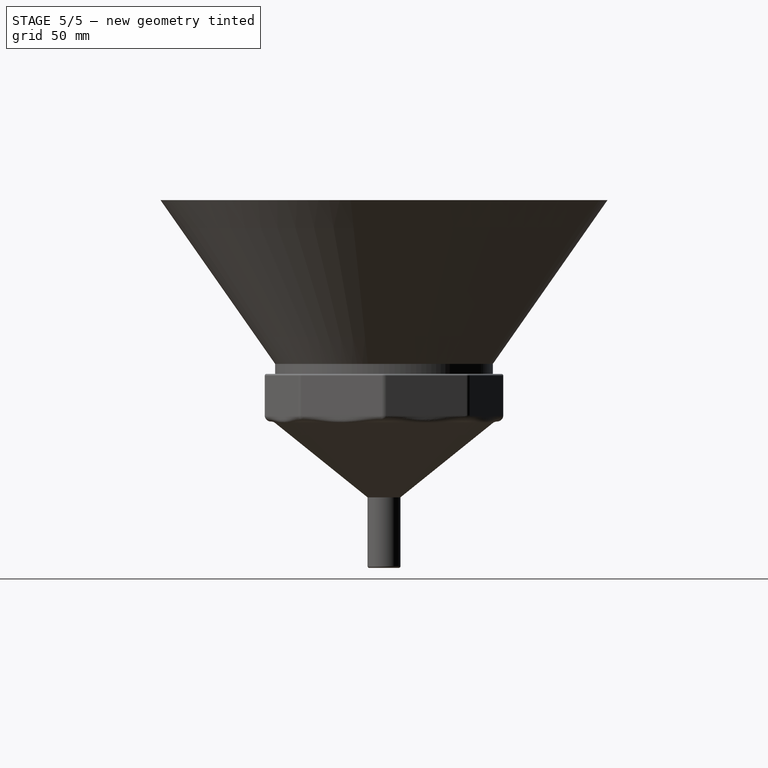
[diagram: stage 5 of 5 — right view after this stage's code; geometry added in this stage tinted green]
FEATURE [Sketcher::SketchObject] Sketch023
  ArcFitTolerance = 1e-06
  ExternalBSplineMaxDegree = 5
  ExternalBSplineTolerance = 0.0001
  FullyConstrained = true
  InternalTolerance = 1e-06
  InvalidShape = false
  MakeInternals = false
  MapMode = 5
  TreeRank = 108
  ValidateShape = true
  expr: Constraints[1] = <<Parameters>>.ring_4_size
  expr: Constraints[2] = <<Parameters>>.ring_4_diameter
  sketch-geometry (1):
    g0: Circle CenterX=-16 CenterY=0 CenterZ=0 NormalX=0 NormalY=0 NormalZ=1 AngleXU=0 Radius=2
  constraints (3):
    c: PointOnObject(g0,g-1)
    c: Diameter(g0) = 4
    c: DistanceX(g0,g-1) = 16
FEATURE [PartDesign::Pocket] Pocket011
  AddSubType = 1
  AutoTaperInnerAngle = true
  BaseFeature = -> PolarPattern007
  CheckUpToFaceLimits = true
  ClaimChildren = false
  Fit = 0
  FitJoin = 0
  InnerFit = 0
  InnerFitJoin = 0
  InvalidShape = false
  Length = 100
  Length2 = 100
  Linearize = true
  NewSolid = false
  Profile = -> Sketch023
  Suppress = false
  TaperInnerAngle = 0
  TaperInnerAngleRev = 0
  TreeRank = 117
  Type = 4
  ValidateShape = true
  _ProfileBasedVersion = 1
  _Version = 1
FEATURE [PartDesign::PolarPattern] PolarPattern008
  AddSubType = 0
  Angle = 360
  Axis = -> Sketch023 [N_Axis]
  BaseFeature = -> Pocket011
  CopyShape = false
  InvalidShape = false
  NewSolid = false
  Occurrences = 15
  OriginalSubs = -> [Pocket011]
  Originals = -> [Pocket011]
  ParallelTransform = true
  SubTransform = true
  Suppress = false
  TreeRank = 118
  ValidateShape = true
  _Version = 3
  expr: Occurrences = <<Parameters>>.ring_4_count
FEATURE [Sketcher::SketchObject] Sketch024
  ArcFitTolerance = 1e-06
  ExternalBSplineMaxDegree = 5
  ExternalBSplineTolerance = 0.0001
  FullyConstrained = true
  InternalTolerance = 1e-06
  InvalidShape = false
  MakeInternals = false
  MapMode = 5
  TreeRank = 109
  ValidateShape = true
  expr: Constraints[1] = <<Parameters>>.ring_5_size
  expr: Constraints[2] = <<Parameters>>.ring_5_diameter
  sketch-geometry (1):
    g0: Circle CenterX=-8 CenterY=0 CenterZ=0 NormalX=0 NormalY=0 NormalZ=1 AngleXU=0 Radius=1.5
  constraints (3):
    c: PointOnObject(g0,g-1)
    c: Diameter(g0) = 3
    c: DistanceX(g0,g-1) = 8
FEATURE [PartDesign::Pocket] Pocket012
  AddSubType = 1
  AutoTaperInnerAngle = true
  BaseFeature = -> PolarPattern008
  CheckUpToFaceLimits = true
  ClaimChildren = false
  Fit = 0
  FitJoin = 0
  InnerFit = 0
  InnerFitJoin = 0
  InvalidShape = false
  Length = 100
  Length2 = 100
  Linearize = true
  NewSolid = false
  Profile = -> Sketch024
  Suppress = false
  TaperInnerAngle = 0
  TaperInnerAngleRev = 0
  TreeRank = 119
  Type = 4
  ValidateShape = true
  _ProfileBasedVersion = 1
  _Version = 1
FEATURE [PartDesign::PolarPattern] PolarPattern009
  AddSubType = 0
  Angle = 360
  Axis = -> Sketch024 [N_Axis]
  BaseFeature = -> Pocket012
  CopyShape = false
  InvalidShape = false
  NewSolid = false
  Occurrences = 10
  OriginalSubs = -> [Pocket012]
  Originals = -> [Pocket012]
  ParallelTransform = true
  SubTransform = true
  Suppress = false
  TreeRank = 120
  ValidateShape = true
  _Version = 3
  expr: Occurrences = <<Parameters>>.ring_5_count
FEATURE [Sketcher::SketchObject] Sketch025
  ArcFitTolerance = 1e-06
  ExternalBSplineMaxDegree = 5
  ExternalBSplineTolerance = 0.0001
  FullyConstrained = true
  InternalTolerance = 1e-06
  InvalidShape = false
  MakeInternals = false
  MapMode = 5
  TreeRank = 110
  ValidateShape = true
  expr: Constraints[1] = <<Parameters>>.ring_5_size * 2
  sketch-geometry (1):
    g0: Circle CenterX=0 CenterY=0 CenterZ=0 NormalX=0 NormalY=0 NormalZ=1 AngleXU=0 Radius=3
  constraints (2):
    c: Coincident(g0,g-1)
    c: Diameter(g0) = 6
FEATURE [PartDesign::Pocket] Pocket013
  AddSubType = 1
  AutoTaperInnerAngle = true
  BaseFeature = -> PolarPattern009
  CheckUpToFaceLimits = true
  ClaimChildren = false
  Fit = 0
  FitJoin = 0
  InnerFit = 0
  InnerFitJoin = 0
  InvalidShape = false
  Length = 100
  Length2 = 100
  Linearize = true
  NewSolid = false
  Profile = -> Sketch025
  Suppress = false
  TaperInnerAngle = 0
  TaperInnerAngleRev = 0
  TreeRank = 121
  Type = 4
  ValidateShape = true
  _ProfileBasedVersion = 1
  _Version = 1
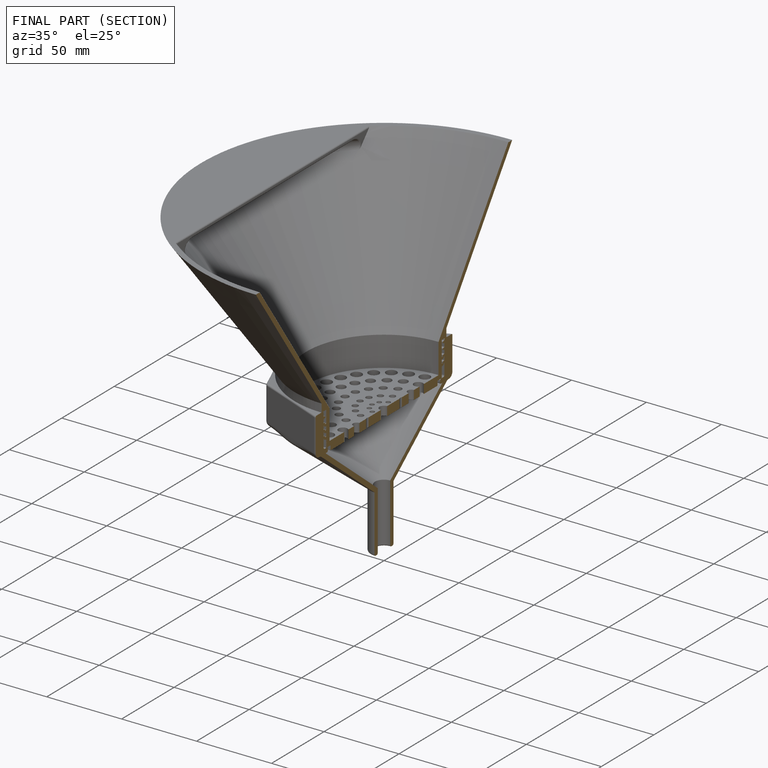
[diagram: finished part — half-section view (interior)]
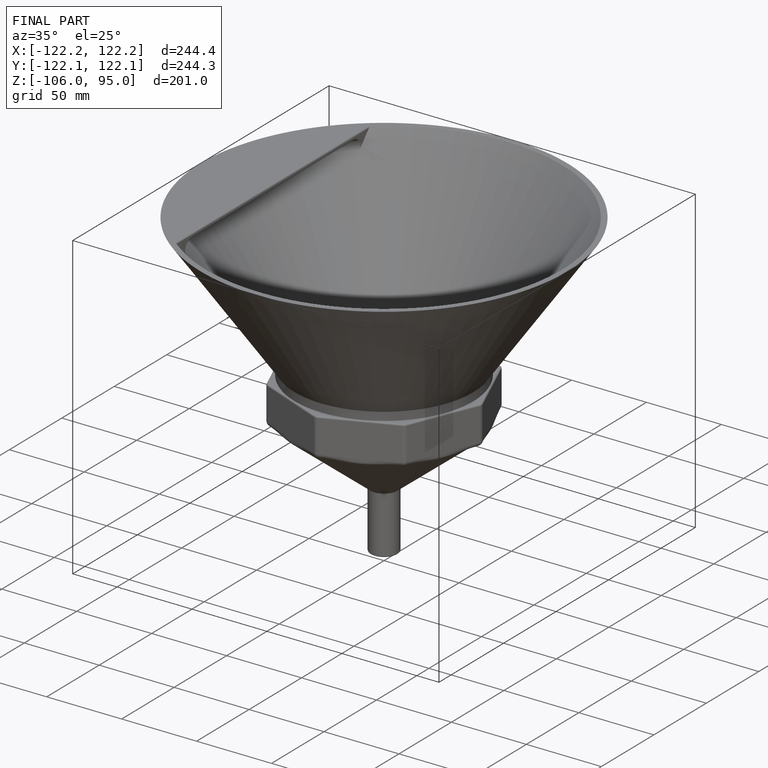
[diagram: finished part — iso view with bounding-box wireframe]
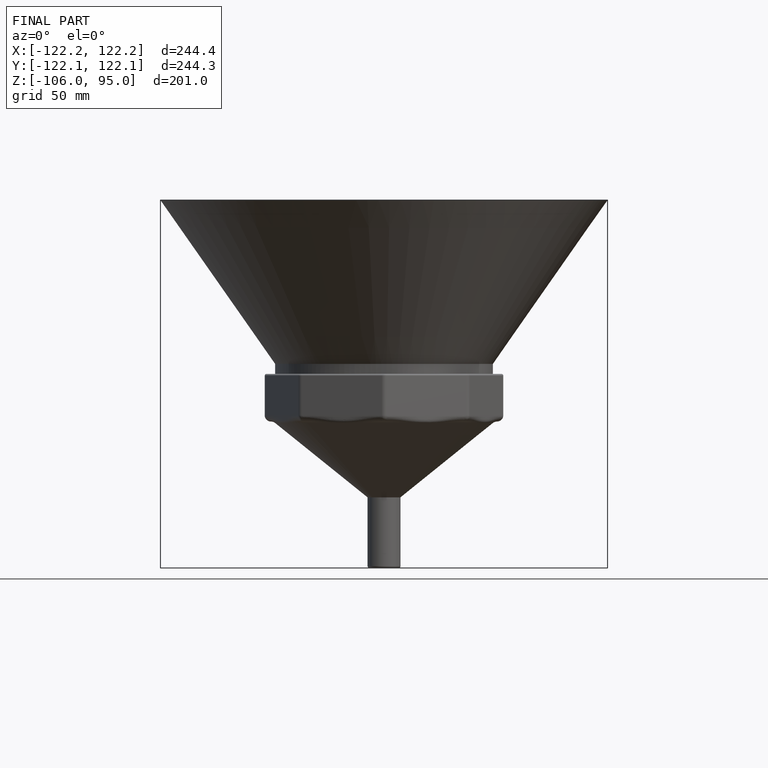
[diagram: finished part — front view with bounding-box wireframe]
